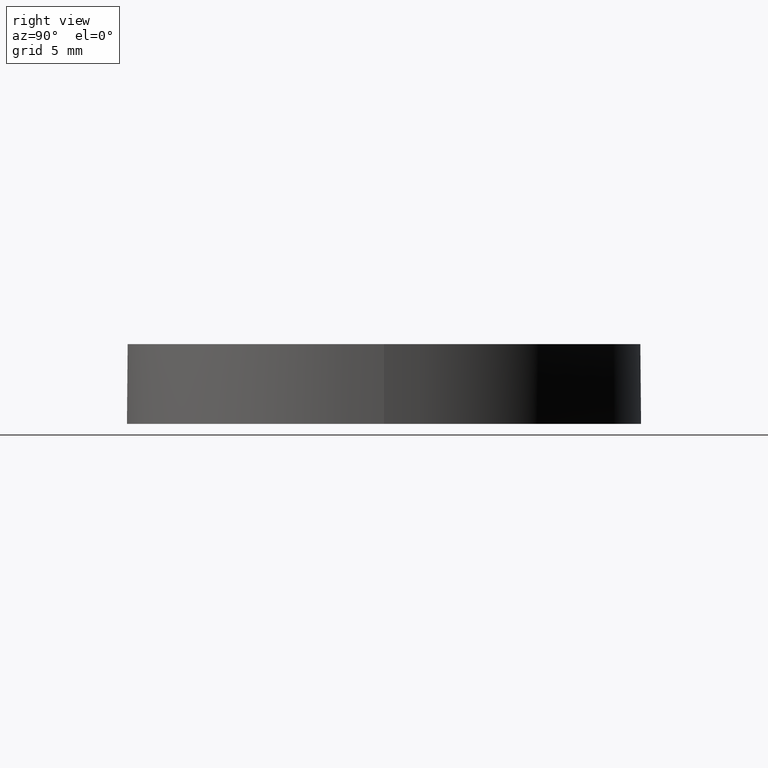
[diagram: clean part render]
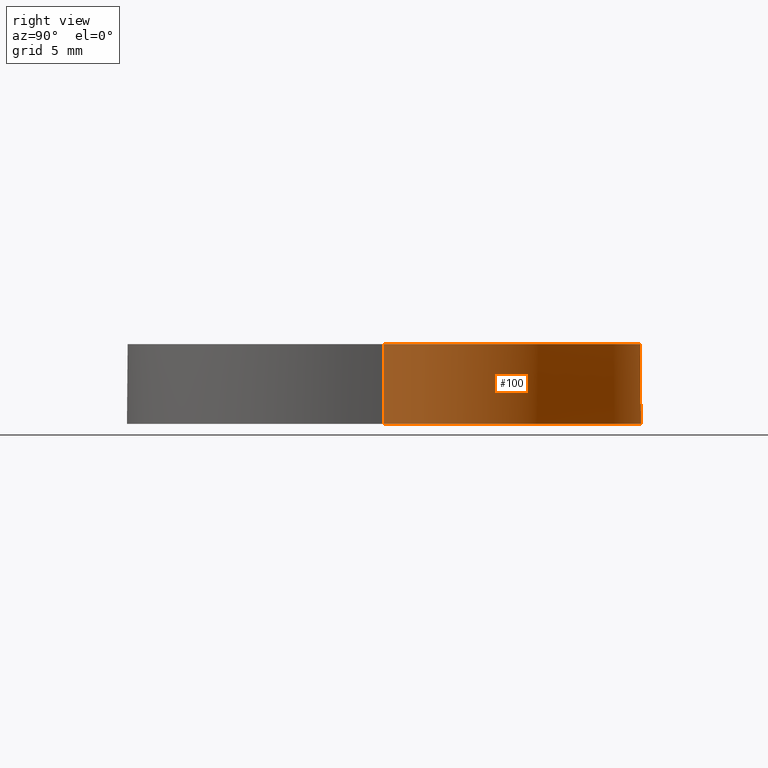
[diagram: same view with one face highlighted and labeled with its STEP entity id]
A machine part, right view. The second image highlights one B-rep face of the part: STEP entity #100.
In plain terms, the highlighted cylindrical surface (partial cylindrical patch) has radius 12.7 mm, axis along (0, 0, 1).
Its self-contained STEP definition (entity closure, byte-faithful):
#1 = ORIENTED_EDGE ( 'NONE', *, *, #21, .T. ) ;
#18 = CARTESIAN_POINT ( 'NONE',  ( -5.684341886080800200E-014, 12.69999999999988600, -0.3457788410602451500 ) ) ;
#21 = EDGE_CURVE ( 'NONE', #33, #37, #233, .T. ) ;
#27 = EDGE_CURVE ( 'NONE', #33, #198, #101, .T. ) ;
#32 = CARTESIAN_POINT ( 'NONE',  ( 12.69999999999999900, 2.442490654175340100E-015, -0.3457788410602499800 ) ) ;
#33 = VERTEX_POINT ( 'NONE', #73 ) ;
#37 = VERTEX_POINT ( 'NONE', #18 ) ;
#40 = ORIENTED_EDGE ( 'NONE', *, *, #222, .T. ) ;
#42 = AXIS2_PLACEMENT_3D ( 'NONE', #231, #96, #229 ) ;
#44 = ORIENTED_EDGE ( 'NONE', *, *, #178, .T. ) ;
#54 = CYLINDRICAL_SURFACE ( 'NONE', #42, 12.69999999999999900 ) ;
#61 = CARTESIAN_POINT ( 'NONE',  ( 12.69999999999999900, 2.442490654175340100E-015, 3.600000000000001000 ) ) ;
#73 = CARTESIAN_POINT ( 'NONE',  ( 12.69999999999999900, 2.442490654175340100E-015, -0.3457788410602499800 ) ) ;
#77 = CARTESIAN_POINT ( 'NONE',  ( 4.996003610813200500E-016, 2.442490654175340100E-015, -0.3457788410602499800 ) ) ;
#92 = CARTESIAN_POINT ( 'NONE',  ( -12.69999999999999900, 3.997792089092478900E-015, -0.3457788410602499800 ) ) ;
#96 = DIRECTION ( 'NONE',  ( 0.0000000000000000000, 0.0000000000000000000, 1.000000000000000000 ) ) ;
#100 = ADVANCED_FACE ( 'NONE', ( #208 ), #54, .T. ) ;
#101 = LINE ( 'NONE', #32, #183 ) ;
#103 = DIRECTION ( 'NONE',  ( 0.0000000000000000000, 0.0000000000000000000, 1.000000000000000000 ) ) ;
#110 = AXIS2_PLACEMENT_3D ( 'NONE', #175, #120, #191 ) ;
#116 = DIRECTION ( 'NONE',  ( 0.0000000000000000000, 0.0000000000000000000, 1.000000000000000000 ) ) ;
#120 = DIRECTION ( 'NONE',  ( -0.0000000000000000000, -0.0000000000000000000, -1.000000000000000000 ) ) ;
#122 = EDGE_LOOP ( 'NONE', ( #1, #40, #44, #144, #200 ) ) ;
#125 = DIRECTION ( 'NONE',  ( 1.000000000000000000, 0.0000000000000000000, 0.0000000000000000000 ) ) ;
#126 = CIRCLE ( 'NONE', #206, 12.69999999999999900 ) ;
#128 = VERTEX_POINT ( 'NONE', #176 ) ;
#140 = LINE ( 'NONE', #92, #151 ) ;
#144 = ORIENTED_EDGE ( 'NONE', *, *, #227, .T. ) ;
#151 = VECTOR ( 'NONE', #116, 1000.000000000000000 ) ;
#164 = CIRCLE ( 'NONE', #110, 12.69999999999999900 ) ;
#175 = CARTESIAN_POINT ( 'NONE',  ( 4.996003610813200500E-016, 2.442490654175340100E-015, 3.600000000000001000 ) ) ;
#176 = CARTESIAN_POINT ( 'NONE',  ( -12.69999999999999900, 3.997792089092478900E-015, 3.600000000000001000 ) ) ;
#178 = EDGE_CURVE ( 'NONE', #185, #128, #140, .T. ) ;
#183 = VECTOR ( 'NONE', #235, 1000.000000000000000 ) ;
#185 = VERTEX_POINT ( 'NONE', #189 ) ;
#186 = AXIS2_PLACEMENT_3D ( 'NONE', #219, #103, #125 ) ;
#189 = CARTESIAN_POINT ( 'NONE',  ( -12.69999999999999900, 3.997792089092478900E-015, -0.3457788410602499800 ) ) ;
#191 = DIRECTION ( 'NONE',  ( 1.000000000000000000, 0.0000000000000000000, 0.0000000000000000000 ) ) ;
#198 = VERTEX_POINT ( 'NONE', #61 ) ;
#200 = ORIENTED_EDGE ( 'NONE', *, *, #27, .F. ) ;
#206 = AXIS2_PLACEMENT_3D ( 'NONE', #77, #207, #224 ) ;
#207 = DIRECTION ( 'NONE',  ( 0.0000000000000000000, 0.0000000000000000000, 1.000000000000000000 ) ) ;
#208 = FACE_OUTER_BOUND ( 'NONE', #122, .T. ) ;
#219 = CARTESIAN_POINT ( 'NONE',  ( 4.996003610813200500E-016, 2.442490654175340100E-015, -0.3457788410602499800 ) ) ;
#222 = EDGE_CURVE ( 'NONE', #37, #185, #126, .T. ) ;
#224 = DIRECTION ( 'NONE',  ( 1.000000000000000000, 0.0000000000000000000, 0.0000000000000000000 ) ) ;
#227 = EDGE_CURVE ( 'NONE', #128, #198, #164, .T. ) ;
#229 = DIRECTION ( 'NONE',  ( 1.000000000000000000, 0.0000000000000000000, 0.0000000000000000000 ) ) ;
#231 = CARTESIAN_POINT ( 'NONE',  ( 4.996003610813200500E-016, 2.442490654175340100E-015, -0.3457788410602499800 ) ) ;
#233 = CIRCLE ( 'NONE', #186, 12.69999999999999900 ) ;
#235 = DIRECTION ( 'NONE',  ( 0.0000000000000000000, 0.0000000000000000000, 1.000000000000000000 ) ) ;